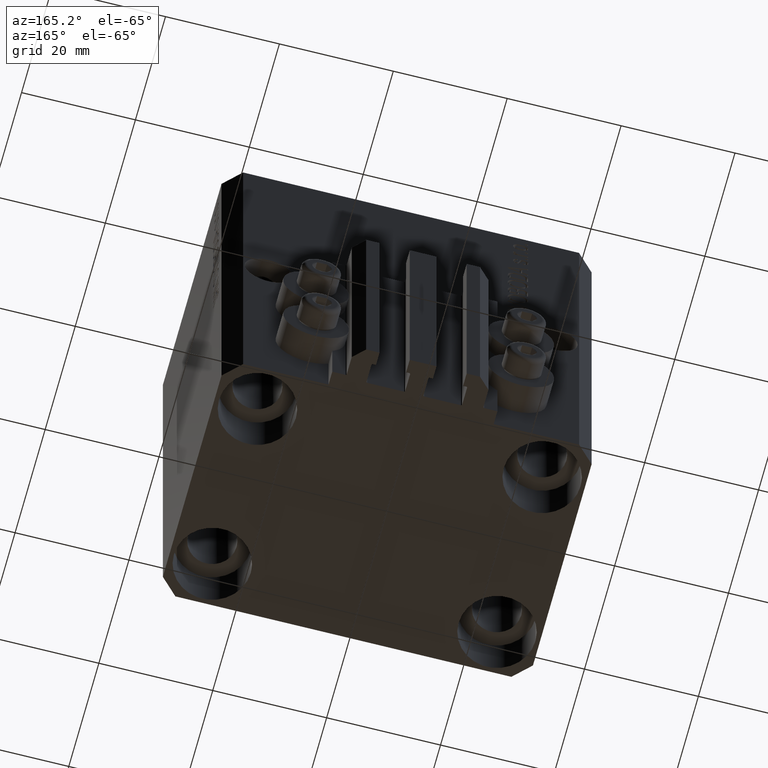
[diagram: clean part render]
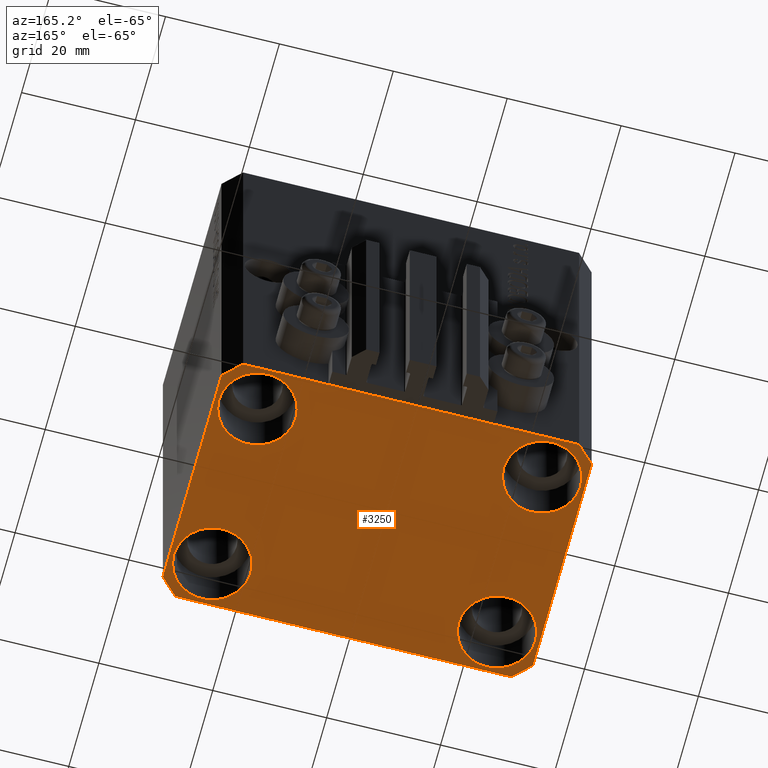
[diagram: same view with one face highlighted and labeled with its STEP entity id]
A machine part, auxiliary view. The second image highlights one B-rep face of the part: STEP entity #3250.
In plain terms, the highlighted planar face has unit normal (0, 0, 1).
Its self-contained STEP definition (entity closure, byte-faithful):
#169 = CARTESIAN_POINT ( 'NONE',  ( -29.49999999999650413, 22.49999999999949907, -77.00000000000000000 ) ) ;
#442 = DIRECTION ( 'NONE',  ( -1.000000000000000000, -2.352167425053553784E-16, 0.000000000000000000 ) ) ;
#538 = ORIENTED_EDGE ( 'NONE', *, *, #12115, .T. ) ;
#785 = FACE_BOUND ( 'NONE', #4054, .T. ) ;
#986 = CARTESIAN_POINT ( 'NONE',  ( 24.99999999999999645, 15.00000000000000888, -77.00000000000000000 ) ) ;
#1001 = VERTEX_POINT ( 'NONE', #9092 ) ;
#1038 = EDGE_CURVE ( 'NONE', #27759, #18706, #2679, .T. ) ;
#1219 = AXIS2_PLACEMENT_3D ( 'NONE', #19911, #1764, #17273 ) ;
#1261 = DIRECTION ( 'NONE',  ( 1.000000000000000000, 0.000000000000000000, -0.000000000000000000 ) ) ;
#1739 = DIRECTION ( 'NONE',  ( 1.000000000000000000, 0.000000000000000000, 0.000000000000000000 ) ) ;
#1764 = DIRECTION ( 'NONE',  ( -0.000000000000000000, -0.000000000000000000, 1.000000000000000000 ) ) ;
#2247 = ORIENTED_EDGE ( 'NONE', *, *, #23898, .T. ) ;
#2265 = LINE ( 'NONE', #38980, #40160 ) ;
#2394 = VERTEX_POINT ( 'NONE', #38904 ) ;
#2679 = CIRCLE ( 'NONE', #10296, 6.750000000041541881 ) ;
#2747 = CARTESIAN_POINT ( 'NONE',  ( -29.49999999999650413, -22.49999999999949907, -77.00000000000000000 ) ) ;
#2750 = AXIS2_PLACEMENT_3D ( 'NONE', #18399, #36259, #11001 ) ;
#2920 = EDGE_CURVE ( 'NONE', #18706, #27759, #10367, .T. ) ;
#3250 = ADVANCED_FACE ( 'NONE', ( #33919, #37261, #785, #8908, #22971 ), #33688, .F. ) ;
#3491 = EDGE_CURVE ( 'NONE', #16894, #1001, #23312, .T. ) ;
#3539 = DIRECTION ( 'NONE',  ( -0.000000000000000000, -0.000000000000000000, 1.000000000000000000 ) ) ;
#3996 = EDGE_CURVE ( 'NONE', #15051, #38519, #24845, .T. ) ;
#4054 = EDGE_LOOP ( 'NONE', ( #46198, #538 ) ) ;
#4119 = ORIENTED_EDGE ( 'NONE', *, *, #2920, .T. ) ;
#4190 = EDGE_CURVE ( 'NONE', #32920, #5667, #17222, .T. ) ;
#4347 = CIRCLE ( 'NONE', #40877, 6.750000000022533087 ) ;
#4836 = DIRECTION ( 'NONE',  ( 0.000000000000000000, 0.000000000000000000, 1.000000000000000000 ) ) ;
#5091 = DIRECTION ( 'NONE',  ( 0.7071067811865474617, -0.7071067811865474617, 0.000000000000000000 ) ) ;
#5231 = CARTESIAN_POINT ( 'NONE',  ( 29.49999999999650413, -22.49999999999949196, -77.00000000000000000 ) ) ;
#5527 = CARTESIAN_POINT ( 'NONE',  ( 18.25000000004154543, 15.00000000000000888, -77.00000000000000000 ) ) ;
#5667 = VERTEX_POINT ( 'NONE', #26666 ) ;
#6704 = LINE ( 'NONE', #35773, #43492 ) ;
#6868 = VECTOR ( 'NONE', #37745, 1000.000000000000000 ) ;
#6959 = EDGE_LOOP ( 'NONE', ( #18040, #4119 ) ) ;
#7615 = CARTESIAN_POINT ( 'NONE',  ( -32.49999999999650413, 19.49999999999949907, -77.00000000000000000 ) ) ;
#8675 = DIRECTION ( 'NONE',  ( -0.000000000000000000, -0.000000000000000000, 1.000000000000000000 ) ) ;
#8759 = ORIENTED_EDGE ( 'NONE', *, *, #3491, .T. ) ;
#8908 = FACE_BOUND ( 'NONE', #31458, .T. ) ;
#9092 = CARTESIAN_POINT ( 'NONE',  ( 31.74999999997746869, -15.00000000000000000, -77.00000000000000000 ) ) ;
#9273 = CARTESIAN_POINT ( 'NONE',  ( -25.00000000000000355, 15.00000000000000000, -77.00000000000000000 ) ) ;
#10098 = ORIENTED_EDGE ( 'NONE', *, *, #3996, .T. ) ;
#10296 = AXIS2_PLACEMENT_3D ( 'NONE', #36432, #3539, #10722 ) ;
#10367 = CIRCLE ( 'NONE', #40765, 6.750000000041541881 ) ;
#10722 = DIRECTION ( 'NONE',  ( 1.000000000000000000, 0.000000000000000000, 0.000000000000000000 ) ) ;
#11001 = DIRECTION ( 'NONE',  ( 1.000000000000000000, 0.000000000000000000, 0.000000000000000000 ) ) ;
#11035 = EDGE_CURVE ( 'NONE', #25998, #29757, #30038, .T. ) ;
#11046 = EDGE_CURVE ( 'NONE', #44321, #24593, #34175, .T. ) ;
#11184 = DIRECTION ( 'NONE',  ( 1.000000000000000000, 0.000000000000000000, 0.000000000000000000 ) ) ;
#11867 = LINE ( 'NONE', #169, #45361 ) ;
#12099 = AXIS2_PLACEMENT_3D ( 'NONE', #46157, #23517, #45459 ) ;
#12115 = EDGE_CURVE ( 'NONE', #29757, #25998, #14883, .T. ) ;
#12759 = ORIENTED_EDGE ( 'NONE', *, *, #19918, .T. ) ;
#13325 = VECTOR ( 'NONE', #5091, 1000.000000000000114 ) ;
#13645 = CARTESIAN_POINT ( 'NONE',  ( 31.74999999995845101, 15.00000000000000888, -77.00000000000000000 ) ) ;
#14125 = DIRECTION ( 'NONE',  ( 1.334402673828349134E-14, 1.000000000000000000, 0.000000000000000000 ) ) ;
#14413 = ORIENTED_EDGE ( 'NONE', *, *, #4190, .F. ) ;
#14883 = CIRCLE ( 'NONE', #40764, 6.749999999958452790 ) ;
#14997 = DIRECTION ( 'NONE',  ( -0.000000000000000000, -0.000000000000000000, 1.000000000000000000 ) ) ;
#15051 = VERTEX_POINT ( 'NONE', #17150 ) ;
#15089 = DIRECTION ( 'NONE',  ( -0.000000000000000000, -0.000000000000000000, 1.000000000000000000 ) ) ;
#15466 = CARTESIAN_POINT ( 'NONE',  ( -25.00000000000000355, -15.00000000000000000, -77.00000000000000000 ) ) ;
#15554 = DIRECTION ( 'NONE',  ( 1.000000000000000000, 0.000000000000000000, 0.000000000000000000 ) ) ;
#16108 = ORIENTED_EDGE ( 'NONE', *, *, #29755, .F. ) ;
#16716 = CARTESIAN_POINT ( 'NONE',  ( 18.25000000002253842, -15.00000000000000000, -77.00000000000000000 ) ) ;
#16894 = VERTEX_POINT ( 'NONE', #16716 ) ;
#17150 = CARTESIAN_POINT ( 'NONE',  ( -31.75000000002253842, 15.00000000000000000, -77.00000000000000000 ) ) ;
#17195 = EDGE_CURVE ( 'NONE', #5667, #2394, #2265, .T. ) ;
#17222 = LINE ( 'NONE', #43428, #32468 ) ;
#17273 = DIRECTION ( 'NONE',  ( 1.000000000000000000, 0.000000000000000000, 0.000000000000000000 ) ) ;
#17565 = VECTOR ( 'NONE', #442, 1000.000000000000000 ) ;
#18040 = ORIENTED_EDGE ( 'NONE', *, *, #1038, .T. ) ;
#18399 = CARTESIAN_POINT ( 'NONE',  ( 25.00000000000000355, -15.00000000000000000, -77.00000000000000000 ) ) ;
#18604 = EDGE_LOOP ( 'NONE', ( #40100, #44745, #14413, #44933, #16108, #43948, #21092, #43071 ) ) ;
#18706 = VERTEX_POINT ( 'NONE', #33150 ) ;
#18963 = CIRCLE ( 'NONE', #12099, 6.749999999977465137 ) ;
#19533 = DIRECTION ( 'NONE',  ( -0.000000000000000000, -0.000000000000000000, 1.000000000000000000 ) ) ;
#19771 = VERTEX_POINT ( 'NONE', #7615 ) ;
#19791 = DIRECTION ( 'NONE',  ( 0.7071067811865483499, 0.7071067811865466846, 0.000000000000000000 ) ) ;
#19911 = CARTESIAN_POINT ( 'NONE',  ( -25.00000000000000355, 15.00000000000000000, -77.00000000000000000 ) ) ;
#19918 = EDGE_CURVE ( 'NONE', #38519, #15051, #4347, .T. ) ;
#20354 = CARTESIAN_POINT ( 'NONE',  ( 24.99999999999999645, 15.00000000000000888, -77.00000000000000000 ) ) ;
#20782 = DIRECTION ( 'NONE',  ( 1.000000000000000000, 1.176083712526788232E-16, 0.000000000000000000 ) ) ;
#20869 = DIRECTION ( 'NONE',  ( -0.7071067811865352493, 0.7071067811865597852, 0.000000000000000000 ) ) ;
#21092 = ORIENTED_EDGE ( 'NONE', *, *, #27681, .F. ) ;
#22869 = DIRECTION ( 'NONE',  ( 1.000000000000000000, 0.000000000000000000, 0.000000000000000000 ) ) ;
#22971 = FACE_OUTER_BOUND ( 'NONE', #18604, .T. ) ;
#23312 = CIRCLE ( 'NONE', #2750, 6.749999999977465137 ) ;
#23517 = DIRECTION ( 'NONE',  ( -0.000000000000000000, -0.000000000000000000, 1.000000000000000000 ) ) ;
#23680 = LINE ( 'NONE', #44918, #6868 ) ;
#23898 = EDGE_CURVE ( 'NONE', #1001, #16894, #18963, .T. ) ;
#24385 = CARTESIAN_POINT ( 'NONE',  ( -31.75000000004154899, -15.00000000000000000, -77.00000000000000000 ) ) ;
#24593 = VERTEX_POINT ( 'NONE', #2747 ) ;
#24845 = CIRCLE ( 'NONE', #1219, 6.750000000022533087 ) ;
#25719 = LINE ( 'NONE', #40276, #17565 ) ;
#25998 = VERTEX_POINT ( 'NONE', #5527 ) ;
#26666 = CARTESIAN_POINT ( 'NONE',  ( 32.49999999999702993, 19.49999999999945999, -77.00000000000000000 ) ) ;
#27681 = EDGE_CURVE ( 'NONE', #19771, #44321, #23680, .T. ) ;
#27759 = VERTEX_POINT ( 'NONE', #24385 ) ;
#28091 = EDGE_CURVE ( 'NONE', #2394, #46566, #25719, .T. ) ;
#28097 = LINE ( 'NONE', #5231, #36823 ) ;
#29755 = EDGE_CURVE ( 'NONE', #24593, #34789, #6704, .T. ) ;
#29757 = VERTEX_POINT ( 'NONE', #13645 ) ;
#30038 = CIRCLE ( 'NONE', #33852, 6.749999999958452790 ) ;
#31458 = EDGE_LOOP ( 'NONE', ( #10098, #12759 ) ) ;
#32468 = VECTOR ( 'NONE', #14125, 1000.000000000000000 ) ;
#32600 = DIRECTION ( 'NONE',  ( -0.7071067811865474617, -0.7071067811865474617, 0.000000000000000000 ) ) ;
#32865 = EDGE_LOOP ( 'NONE', ( #8759, #2247 ) ) ;
#32920 = VERTEX_POINT ( 'NONE', #38572 ) ;
#33150 = CARTESIAN_POINT ( 'NONE',  ( -18.24999999995845812, -15.00000000000000000, -77.00000000000000000 ) ) ;
#33624 = CARTESIAN_POINT ( 'NONE',  ( -32.49999999999650413, -19.49999999999949907, -77.00000000000000000 ) ) ;
#33688 = PLANE ( 'NONE',  #40808 ) ;
#33852 = AXIS2_PLACEMENT_3D ( 'NONE', #20354, #8675, #1739 ) ;
#33919 = FACE_BOUND ( 'NONE', #6959, .T. ) ;
#34175 = LINE ( 'NONE', #37999, #13325 ) ;
#34789 = VERTEX_POINT ( 'NONE', #40346 ) ;
#35773 = CARTESIAN_POINT ( 'NONE',  ( -29.49999999999650413, -22.49999999999949907, -77.00000000000000000 ) ) ;
#36259 = DIRECTION ( 'NONE',  ( -0.000000000000000000, -0.000000000000000000, 1.000000000000000000 ) ) ;
#36432 = CARTESIAN_POINT ( 'NONE',  ( -25.00000000000000355, -15.00000000000000000, -77.00000000000000000 ) ) ;
#36823 = VECTOR ( 'NONE', #19791, 1000.000000000000000 ) ;
#37261 = FACE_BOUND ( 'NONE', #32865, .T. ) ;
#37745 = DIRECTION ( 'NONE',  ( 0.000000000000000000, -1.000000000000000000, 0.000000000000000000 ) ) ;
#37914 = EDGE_CURVE ( 'NONE', #34789, #32920, #28097, .T. ) ;
#37999 = CARTESIAN_POINT ( 'NONE',  ( -32.49999999999650413, -19.49999999999949907, -77.00000000000000000 ) ) ;
#38519 = VERTEX_POINT ( 'NONE', #39359 ) ;
#38572 = CARTESIAN_POINT ( 'NONE',  ( 32.49999999999651124, -19.49999999999949196, -77.00000000000000000 ) ) ;
#38904 = CARTESIAN_POINT ( 'NONE',  ( 29.49999999999707967, 22.49999999999951328, -77.00000000000000000 ) ) ;
#38980 = CARTESIAN_POINT ( 'NONE',  ( 32.49999999999702993, 19.49999999999945999, -77.00000000000000000 ) ) ;
#39359 = CARTESIAN_POINT ( 'NONE',  ( -18.24999999997747224, 15.00000000000000000, -77.00000000000000000 ) ) ;
#40100 = ORIENTED_EDGE ( 'NONE', *, *, #28091, .F. ) ;
#40160 = VECTOR ( 'NONE', #20869, 1000.000000000000000 ) ;
#40276 = CARTESIAN_POINT ( 'NONE',  ( 29.49999999999707967, 22.49999999999951328, -77.00000000000000000 ) ) ;
#40346 = CARTESIAN_POINT ( 'NONE',  ( 29.49999999999650413, -22.49999999999949196, -77.00000000000000000 ) ) ;
#40764 = AXIS2_PLACEMENT_3D ( 'NONE', #986, #15089, #15554 ) ;
#40765 = AXIS2_PLACEMENT_3D ( 'NONE', #15466, #14997, #11184 ) ;
#40808 = AXIS2_PLACEMENT_3D ( 'NONE', #44677, #4836, #1261 ) ;
#40877 = AXIS2_PLACEMENT_3D ( 'NONE', #9273, #19533, #22869 ) ;
#42597 = EDGE_CURVE ( 'NONE', #46566, #19771, #11867, .T. ) ;
#43071 = ORIENTED_EDGE ( 'NONE', *, *, #42597, .F. ) ;
#43428 = CARTESIAN_POINT ( 'NONE',  ( 32.49999999999651124, -19.49999999999949196, -77.00000000000000000 ) ) ;
#43492 = VECTOR ( 'NONE', #20782, 1000.000000000000000 ) ;
#43948 = ORIENTED_EDGE ( 'NONE', *, *, #11046, .F. ) ;
#44321 = VERTEX_POINT ( 'NONE', #33624 ) ;
#44677 = CARTESIAN_POINT ( 'NONE',  ( 0.000000000000000000, 0.000000000000000000, -77.00000000000000000 ) ) ;
#44745 = ORIENTED_EDGE ( 'NONE', *, *, #17195, .F. ) ;
#44918 = CARTESIAN_POINT ( 'NONE',  ( -32.49999999999650413, 19.49999999999949907, -77.00000000000000000 ) ) ;
#44933 = ORIENTED_EDGE ( 'NONE', *, *, #37914, .F. ) ;
#45361 = VECTOR ( 'NONE', #32600, 1000.000000000000114 ) ;
#45459 = DIRECTION ( 'NONE',  ( 1.000000000000000000, 0.000000000000000000, 0.000000000000000000 ) ) ;
#46157 = CARTESIAN_POINT ( 'NONE',  ( 25.00000000000000355, -15.00000000000000000, -77.00000000000000000 ) ) ;
#46198 = ORIENTED_EDGE ( 'NONE', *, *, #11035, .T. ) ;
#46474 = CARTESIAN_POINT ( 'NONE',  ( -29.49999999999650413, 22.49999999999949907, -77.00000000000000000 ) ) ;
#46566 = VERTEX_POINT ( 'NONE', #46474 ) ;